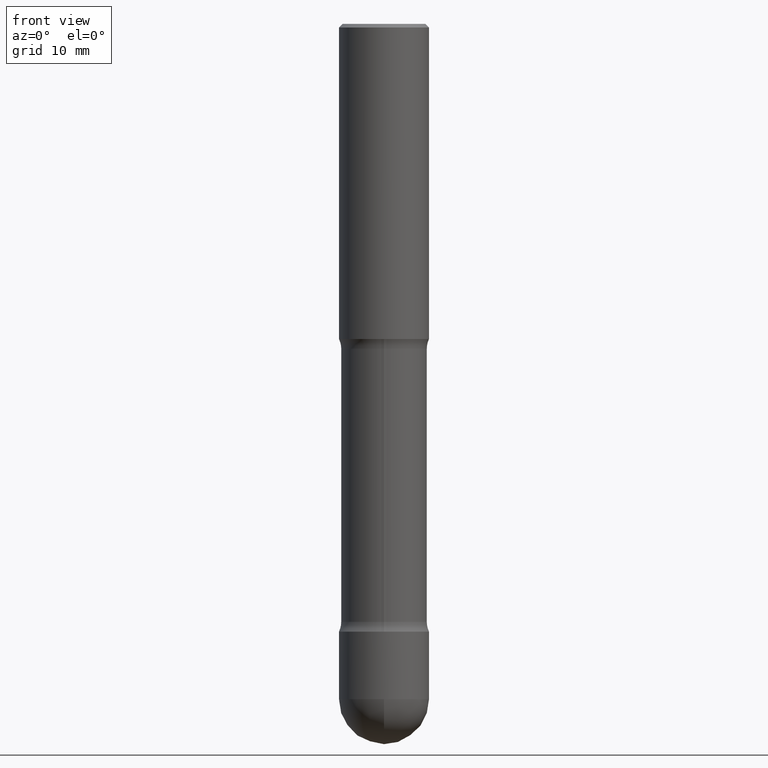
[diagram: clean part render]
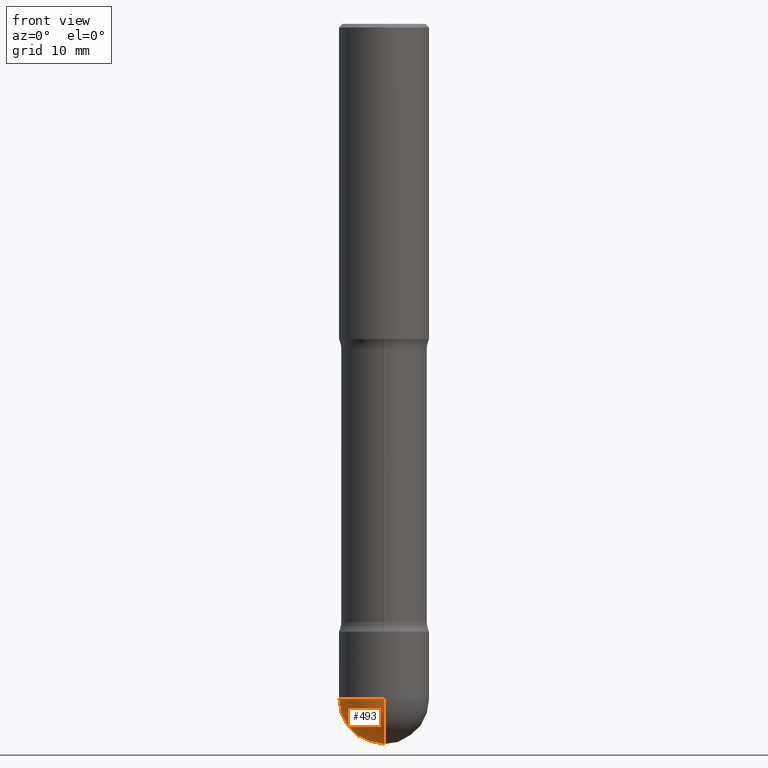
[diagram: same view with one face highlighted and labeled with its STEP entity id]
A machine part, front view. The second image highlights one B-rep face of the part: STEP entity #493.
In plain terms, the highlighted spherical surface has radius 6.35 mm.
Its self-contained STEP definition (entity closure, byte-faithful):
#6 = CARTESIAN_POINT ( 'NONE',  ( 1.776356839400337634E-15, 0.2499999999999863443, -3.750000000000000888 ) ) ;
#44 = VERTEX_POINT ( 'NONE', #6 ) ;
#57 = SPHERICAL_SURFACE ( 'NONE', #397, 0.2500000000000002220 ) ;
#111 = AXIS2_PLACEMENT_3D ( 'NONE', #711, #829, #434 ) ;
#154 = EDGE_CURVE ( 'NONE', #44, #834, #433, .T. ) ;
#188 = EDGE_CURVE ( 'NONE', #325, #208, #704, .T. ) ;
#203 = CARTESIAN_POINT ( 'NONE',  ( 8.668097828301368932E-29, -1.381253501516086483E-14, -3.749999999999999556 ) ) ;
#208 = VERTEX_POINT ( 'NONE', #487 ) ;
#211 = DIRECTION ( 'NONE',  ( 1.000000000000000000, -6.982962677686267499E-15, 0.000000000000000000 ) ) ;
#226 = CARTESIAN_POINT ( 'NONE',  ( 8.668097828301368932E-29, -1.381253501516086483E-14, -3.749999999999999556 ) ) ;
#239 = ORIENTED_EDGE ( 'NONE', *, *, #188, .T. ) ;
#282 = DIRECTION ( 'NONE',  ( -1.000000000000000000, 6.982962677686265922E-15, -4.883557194083112340E-29 ) ) ;
#294 = EDGE_CURVE ( 'NONE', #834, #208, #775, .T. ) ;
#322 = DIRECTION ( 'NONE',  ( 1.000000000000000000, -6.982962677686265922E-15, 4.883557194083112901E-29 ) ) ;
#325 = VERTEX_POINT ( 'NONE', #415 ) ;
#336 = EDGE_LOOP ( 'NONE', ( #457, #239, #388, #418 ) ) ;
#352 = CIRCLE ( 'NONE', #458, 0.2500000000000002220 ) ;
#388 = ORIENTED_EDGE ( 'NONE', *, *, #294, .F. ) ;
#397 = AXIS2_PLACEMENT_3D ( 'NONE', #582, #322, #846 ) ;
#415 = CARTESIAN_POINT ( 'NONE',  ( 9.268775451232909883E-29, -1.470071343486099480E-14, -4.000000000000000000 ) ) ;
#418 = ORIENTED_EDGE ( 'NONE', *, *, #154, .F. ) ;
#433 = CIRCLE ( 'NONE', #662, 0.2499999999999993061 ) ;
#434 = DIRECTION ( 'NONE',  ( 1.000000000000000000, -6.982962677686267499E-15, 0.000000000000000000 ) ) ;
#457 = ORIENTED_EDGE ( 'NONE', *, *, #686, .F. ) ;
#458 = AXIS2_PLACEMENT_3D ( 'NONE', #226, #837, #690 ) ;
#487 = CARTESIAN_POINT ( 'NONE',  ( -1.745740669421475564E-15, -0.2500000000000131561, -3.749999999999998668 ) ) ;
#493 = ADVANCED_FACE ( 'NONE', ( #506 ), #57, .T. ) ;
#506 = FACE_OUTER_BOUND ( 'NONE', #336, .T. ) ;
#544 = AXIS2_PLACEMENT_3D ( 'NONE', #203, #282, #760 ) ;
#582 = CARTESIAN_POINT ( 'NONE',  ( 8.668097828301368932E-29, -1.381253501516086483E-14, -3.749999999999999556 ) ) ;
#662 = AXIS2_PLACEMENT_3D ( 'NONE', #826, #818, #211 ) ;
#686 = EDGE_CURVE ( 'NONE', #325, #44, #352, .T. ) ;
#690 = DIRECTION ( 'NONE',  ( 7.105427357601000281E-15, 1.000000000000000000, 0.000000000000000000 ) ) ;
#704 = CIRCLE ( 'NONE', #544, 0.2500000000000002220 ) ;
#711 = CARTESIAN_POINT ( 'NONE',  ( 9.170508023194261117E-29, -1.309305502066179584E-14, -3.749999999999999556 ) ) ;
#760 = DIRECTION ( 'NONE',  ( -6.982962677686265133E-15, -1.000000000000000000, 0.000000000000000000 ) ) ;
#775 = CIRCLE ( 'NONE', #111, 0.2499999999999993061 ) ;
#818 = DIRECTION ( 'NONE',  ( -2.445468806185136597E-29, 3.491481338843145583E-15, 1.000000000000000000 ) ) ;
#826 = CARTESIAN_POINT ( 'NONE',  ( 9.170508023194261117E-29, -1.309305502066179584E-14, -3.749999999999999556 ) ) ;
#829 = DIRECTION ( 'NONE',  ( -2.445468806185136597E-29, 3.491481338843145583E-15, 1.000000000000000000 ) ) ;
#834 = VERTEX_POINT ( 'NONE', #859 ) ;
#837 = DIRECTION ( 'NONE',  ( 1.000000000000000000, -7.105427357601001070E-15, 4.926315508542082329E-29 ) ) ;
#846 = DIRECTION ( 'NONE',  ( -6.982962677686265922E-15, -1.000000000000000000, 4.370956789862817994E-15 ) ) ;
#859 = CARTESIAN_POINT ( 'NONE',  ( -0.2499999999999993061, -1.066204543022846339E-14, -3.749999999999999556 ) ) ;